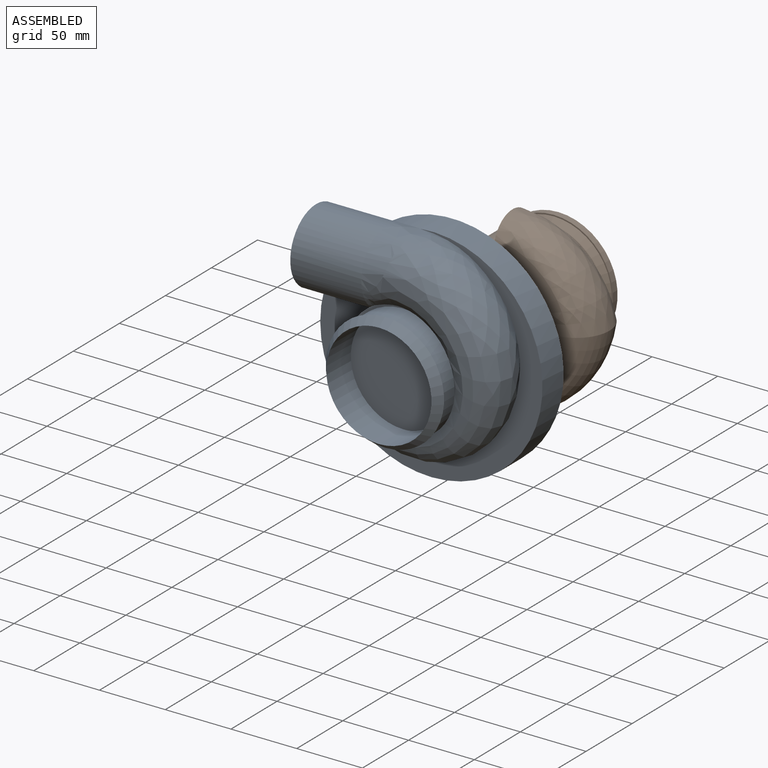
[diagram: assembled view]
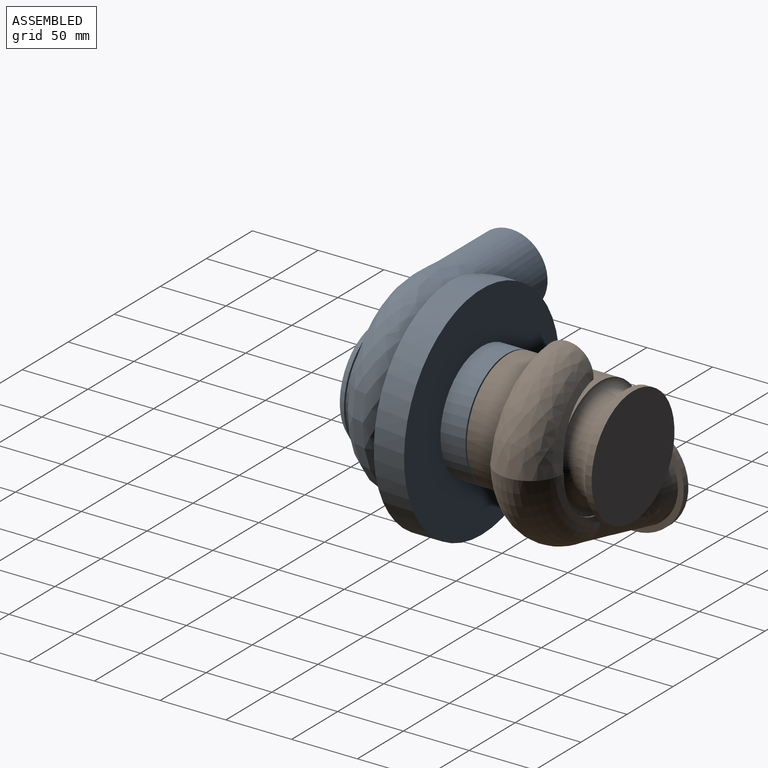
[diagram: assembled view, second angle]
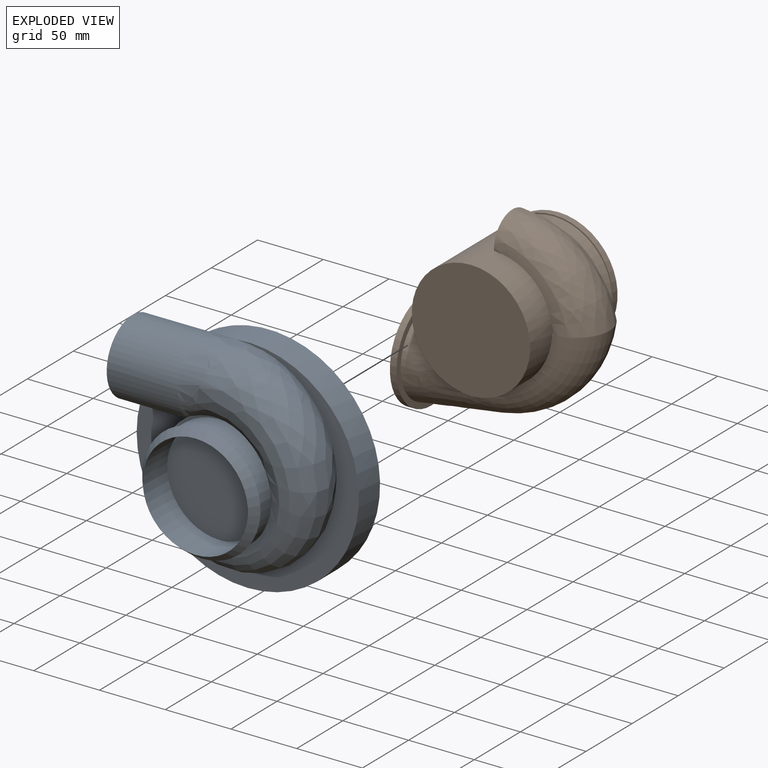
[diagram: exploded view]
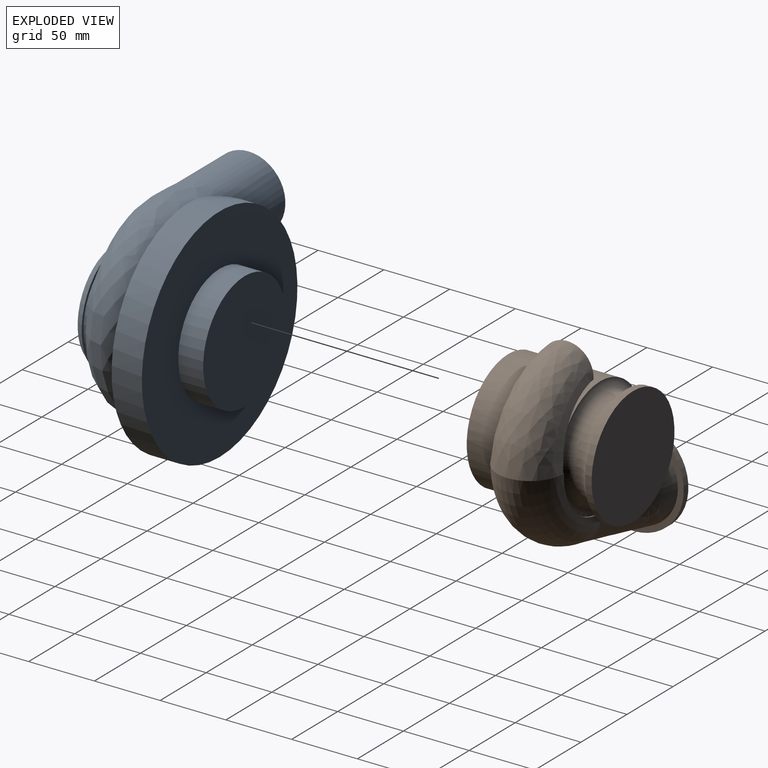
[diagram: exploded view, second angle]
ASSEMBLY  parts=2 mates=2
PART A: 30 faces, bbox 170.5x100.5x172.5 mm
  f0: bspline ~3.26x2.11mm, area 2mm2, adj f13,f22,f23
  f1: bspline ~66.27x24.75mm, area 0mm2, adj f22,f23
  f2: bspline ~88.46x65.72mm, area 114.8mm2, adj f3,f5
  f3: bspline ~83.32x60.56mm, area 136mm2, adj f2,f4,f5
  f4: plane 81.48x80.33mm, normal (0,-1,0), area 4950.9mm2, adj f3,f5
  f5: cylinder r=40mm len=80mm, axis (0,-1,0), area 6436.4mm2, adj f2,f3,f4,f6
  f6: cone r=40mm half-angle=37.1deg, axis (0,1,0), area 2211.1mm2, adj f5,f7
  f7: plane 90x90mm, normal (0,1,0), area 552.9mm2, adj f6,f10
  f8: plane 56x56mm, normal (-1,0,0), area 728.1mm2, adj f13,f14
  f9: bspline ~44.91x30.31mm, area 0.3mm2, adj f10,f15,f16
  f10: cylinder r=43mm len=86mm, axis (0,-1,0), area 4818.1mm2, adj f7,f9,f11,f15,f16
  f11: bspline ~52.47x19.3mm, area 0.7mm2, adj f10,f15,f16
  f12: cylinder r=43mm len=59.4mm, axis (0,-1,0), area 66.4mm2, adj f20,f21
  f13: cylinder r=23.5mm len=54mm, axis (1,0,0), area 6279.6mm2, adj f0,f8,f21,f22,f23,f24
  f14: cylinder r=28mm len=56mm, axis (1,0,0), area 7314mm2, adj f8,f16,f22,f25,f27
  f15: plane 76.43x50.58mm, normal (0,-1,0), area 185mm2, adj f9,f10,f11,f16,f22
  f16: bspline ~150.45x131.1mm, area 18142.4mm2, adj f9,f10,f11,f14,f15,f17,f22,f25
  f17: cylinder r=16mm len=29.77mm, axis (0,0,1), area 196.5mm2, adj f16,f18,f22,f27
  f18: plane 29.72x13mm, normal (0,0,1), area 77.4mm2, adj f17,f19,f22,f27
  f19: cylinder r=14mm len=27.47mm, axis (0,0,1), area 191.1mm2, adj f18,f21,f22
  f20: plane 80.07x38.6mm, normal (0,-1,0), area 177.2mm2, adj f12,f21,f22
  f21: bspline ~147.67x127.08mm, area 16683.4mm2, adj f12,f13,f19,f20,f22,f23
  f22: cylinder r=45mm len=90mm, axis (0,-1,0), area 7895.6mm2, adj f0,f1,f13,f14,f15,f16,f17,f18
  f23: plane 138.28x115.09mm, normal (0,-1,0), area 4947.6mm2, adj f0,f1,f13,f21,f22,f24
  f24: cylinder r=84.5mm len=45.26mm, axis (0,-1,0), area 538.8mm2, adj f13,f23
  f25: cylinder r=84.5mm len=169mm, axis (0,-1,0), area 11229.1mm2, adj f14,f16,f26,f27
  f26: plane 169x169mm, normal (0,1,0), area 16070mm2, adj f25,f29
  f27: plane 169x169mm, normal (0,-1,0), area 8501.1mm2, adj f14,f16,f17,f18,f22,f25
  f28: plane 90x90mm, normal (0,1,0), area 6361.7mm2, adj f29
  f29: cylinder r=45mm len=90mm, axis (0,-1,0), area 5372.1mm2, adj f26,f28
PART B: 24 faces, bbox 141x95x154.1 mm
  f0: cylinder r=45mm len=90mm, axis (0,-1,0), area 11186.1mm2, adj f1,f2,f3,f4,f6,f7,f8,f17
  f1: bspline ~67.17x67.13mm, area 9466.2mm2, adj f0,f4,f9,f22
  f2: bspline ~13.15x9.1mm, area 2.7mm2, adj f0,f3,f4
  f3: plane 50x1mm, normal (0,0,1), area 50mm2, adj f0,f2,f5,f8,f9
  f4: bspline ~71.99x70.99mm, area 7359.2mm2, adj f0,f1,f2,f5,f7,f9
  f5: bspline ~5.44x2.24mm, area 2.7mm2, adj f3,f4,f9
  f6: plane 40.02x21mm, normal (-1,0,0), area 668.2mm2, adj f0,f7
  f7: bspline ~71x66mm, area 6421.1mm2, adj f0,f4,f6,f8,f11
  f8: bspline ~50x7.26mm, area 367.9mm2, adj f0,f3,f7,f11
  f9: cylinder r=45mm len=80.22mm, axis (0,1,0), area 290.6mm2, adj f1,f3,f4,f5,f17
  f10: cylinder r=37mm len=74mm, axis (0,1,0), area 392mm2, adj f16,f17
  f11: cylinder r=45mm len=21.21mm, axis (0,1,0), area 35.7mm2, adj f7,f8,f17
  f12: plane 90x90mm, normal (0,-1,0), area 279.6mm2, adj f14,f15
  f13: plane 90x90mm, normal (0,1,0), area 6361.7mm2, adj f14
  f14: cylinder r=45mm len=90mm, axis (0,-1,0), area 1413.7mm2, adj f12,f13
  f15: cone r=44mm half-angle=45deg, axis (0,1,0), area 1724.4mm2, adj f12,f16
  f16: torus R=45mm, axis (0,-1,0), area 1492.2mm2, adj f10,f15
  f17: torus R=45mm, axis (0,1,0), area 3150.9mm2, adj f0,f9,f10,f11
  f18: plane 90x90mm, normal (0,-1,0), area 6361.7mm2, adj f0
  f19: cylinder r=38.1mm len=76.2mm, axis (1,0,0), area 1196.9mm2, adj f21,f22
  f20: cylinder r=30mm len=60mm, axis (1,0,0), area 942.5mm2, adj f21,f23
  f21: plane 76.2x76.2mm, normal (-1,0,0), area 1732.9mm2, adj f19,f20
  f22: plane 76.2x76.2mm, normal (1,0,0), area 1013.9mm2, adj f1,f19
  f23: plane 60x60mm, normal (-1,0,0), area 2827.4mm2, adj f20
PLACE A t=(-0.55,4.23,-0.94)mm
PLACE B t=(-0.55,4.23,-0.94)mm fixed
MATE cylindrical B.f0 <-> A.f22  axis (0,-1,0) through (-0.55,104.23,-0.94)mm
MATE planar A.f22 <-> B.f0  axis (0,1,0) through (-0.55,103.23,-0.94)mm
